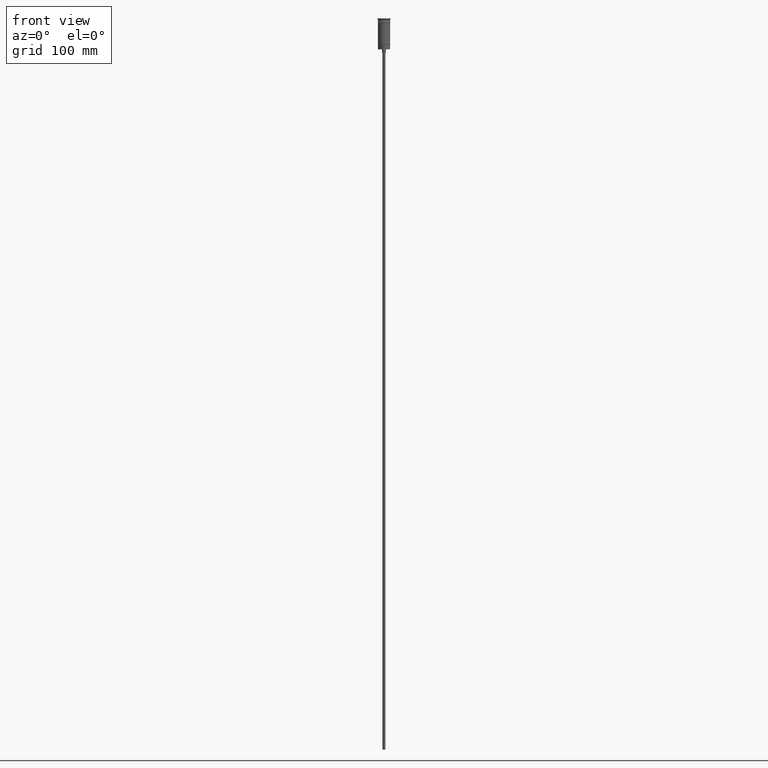
[diagram: clean part render]
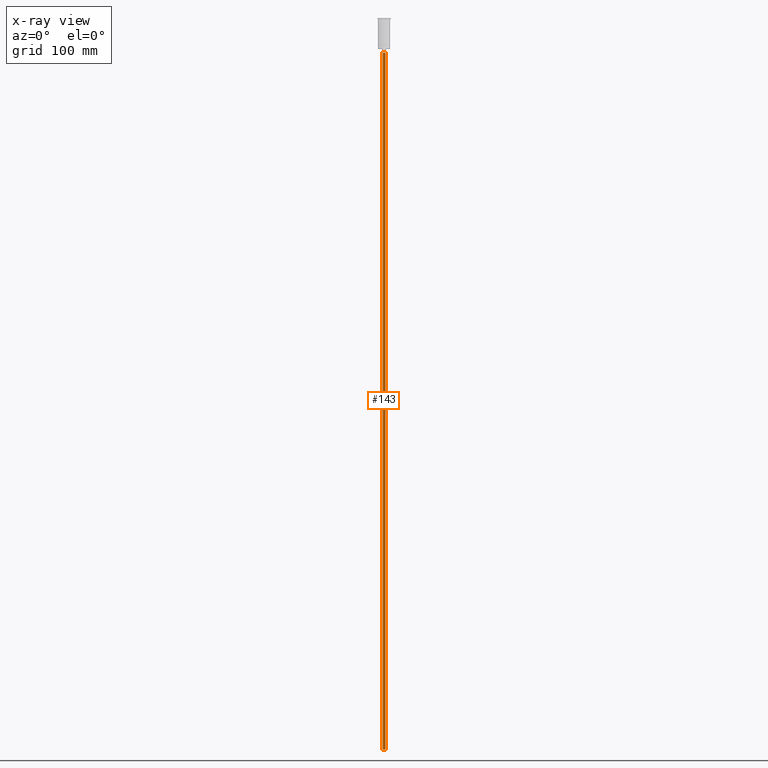
[diagram: x-ray — body ghosted, one internal face saturated and labeled with its STEP entity id]
A machine part, front view, then the same camera in x-ray: the body is ghosted and one INTERNAL B-rep face — a face not visible from any outside direction — is saturated and labeled: STEP entity #143.
In plain terms, the highlighted cylindrical surface (edge-blend (fillet) strip) has radius 1.25 mm, axis along (-0, -0, 1).
Its self-contained STEP definition (entity closure, byte-faithful):
#21 = ORIENTED_EDGE ( 'NONE', *, *, #464, .T. ) ;
#46 = CARTESIAN_POINT ( 'NONE',  ( -1.250000000000000000, 1.530808498934191571E-16, -29.50000000000000000 ) ) ;
#103 = CYLINDRICAL_SURFACE ( 'NONE', #1167, 1.250000000000000000 ) ;
#132 = AXIS2_PLACEMENT_3D ( 'NONE', #1575, #570, #1567 ) ;
#143 = ADVANCED_FACE ( 'NONE', ( #723 ), #103, .T. ) ;
#175 = EDGE_CURVE ( 'NONE', #636, #783, #860, .T. ) ;
#336 = ORIENTED_EDGE ( 'NONE', *, *, #1041, .T. ) ;
#355 = ORIENTED_EDGE ( 'NONE', *, *, #1551, .F. ) ;
#408 = VERTEX_POINT ( 'NONE', #786 ) ;
#464 = EDGE_CURVE ( 'NONE', #699, #783, #1532, .T. ) ;
#513 = DIRECTION ( 'NONE',  ( -0.000000000000000000, -0.000000000000000000, 1.000000000000000000 ) ) ;
#553 = CARTESIAN_POINT ( 'NONE',  ( 0.000000000000000000, 0.000000000000000000, -626.5000000000000000 ) ) ;
#570 = DIRECTION ( 'NONE',  ( 0.000000000000000000, 0.000000000000000000, -1.000000000000000000 ) ) ;
#597 = DIRECTION ( 'NONE',  ( -0.000000000000000000, -0.000000000000000000, 1.000000000000000000 ) ) ;
#635 = CARTESIAN_POINT ( 'NONE',  ( -1.250000000000000000, 1.530808498934191571E-16, -626.5000000000000000 ) ) ;
#636 = VERTEX_POINT ( 'NONE', #1540 ) ;
#699 = VERTEX_POINT ( 'NONE', #46 ) ;
#723 = FACE_OUTER_BOUND ( 'NONE', #1281, .T. ) ;
#757 = LINE ( 'NONE', #635, #1045 ) ;
#783 = VERTEX_POINT ( 'NONE', #1207 ) ;
#786 = CARTESIAN_POINT ( 'NONE',  ( -1.250000000000000000, 1.530808498934191571E-16, -626.5000000000000000 ) ) ;
#860 = LINE ( 'NONE', #982, #1217 ) ;
#918 = CIRCLE ( 'NONE', #1433, 1.250000000000000000 ) ;
#982 = CARTESIAN_POINT ( 'NONE',  ( 1.250000000000000000, 0.000000000000000000, -626.5000000000000000 ) ) ;
#1041 = EDGE_CURVE ( 'NONE', #408, #699, #757, .T. ) ;
#1045 = VECTOR ( 'NONE', #513, 1000.000000000000000 ) ;
#1093 = DIRECTION ( 'NONE',  ( 1.000000000000000000, 0.000000000000000000, 0.000000000000000000 ) ) ;
#1167 = AXIS2_PLACEMENT_3D ( 'NONE', #1180, #597, #1093 ) ;
#1180 = CARTESIAN_POINT ( 'NONE',  ( 0.000000000000000000, 0.000000000000000000, -626.5000000000000000 ) ) ;
#1207 = CARTESIAN_POINT ( 'NONE',  ( 1.250000000000000000, 0.000000000000000000, -29.50000000000000000 ) ) ;
#1217 = VECTOR ( 'NONE', #1222, 1000.000000000000000 ) ;
#1222 = DIRECTION ( 'NONE',  ( -0.000000000000000000, -0.000000000000000000, 1.000000000000000000 ) ) ;
#1281 = EDGE_LOOP ( 'NONE', ( #355, #336, #21, #1536 ) ) ;
#1303 = DIRECTION ( 'NONE',  ( -1.000000000000000000, 0.000000000000000000, 0.000000000000000000 ) ) ;
#1433 = AXIS2_PLACEMENT_3D ( 'NONE', #553, #1547, #1303 ) ;
#1532 = CIRCLE ( 'NONE', #132, 1.250000000000000000 ) ;
#1536 = ORIENTED_EDGE ( 'NONE', *, *, #175, .F. ) ;
#1540 = CARTESIAN_POINT ( 'NONE',  ( 1.250000000000000000, 0.000000000000000000, -626.5000000000000000 ) ) ;
#1547 = DIRECTION ( 'NONE',  ( 0.000000000000000000, 0.000000000000000000, -1.000000000000000000 ) ) ;
#1551 = EDGE_CURVE ( 'NONE', #408, #636, #918, .T. ) ;
#1567 = DIRECTION ( 'NONE',  ( -1.000000000000000000, 0.000000000000000000, 0.000000000000000000 ) ) ;
#1575 = CARTESIAN_POINT ( 'NONE',  ( 0.000000000000000000, 0.000000000000000000, -29.50000000000000000 ) ) ;